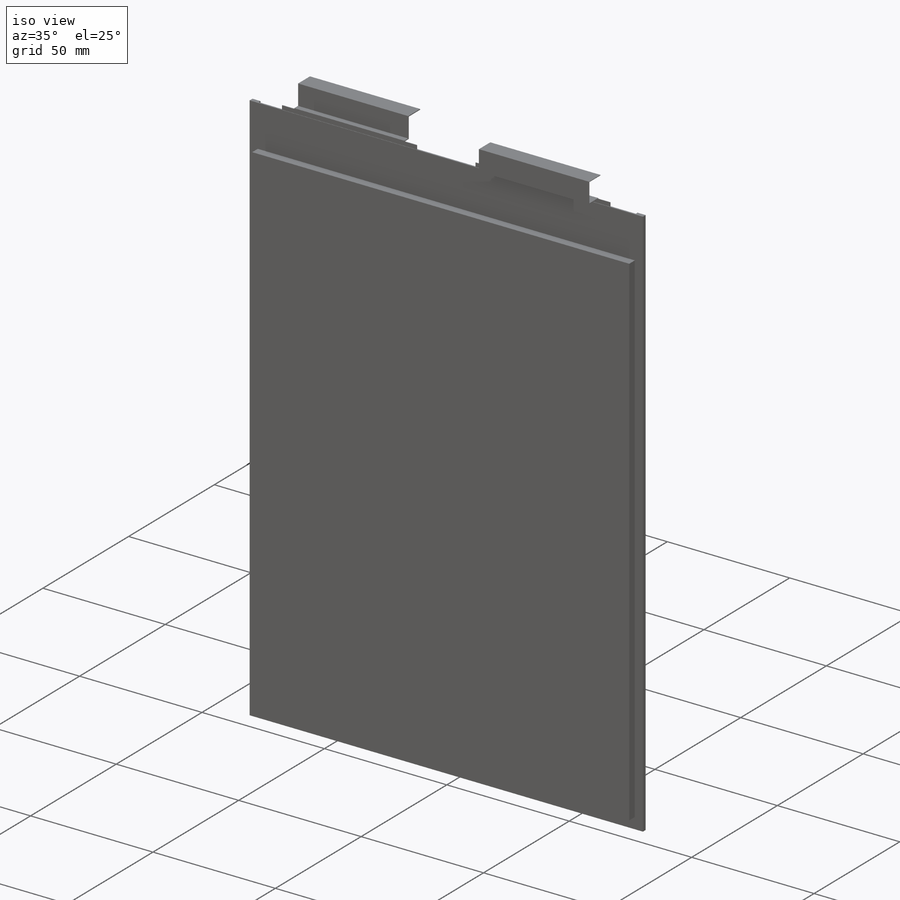
[diagram: iso view]
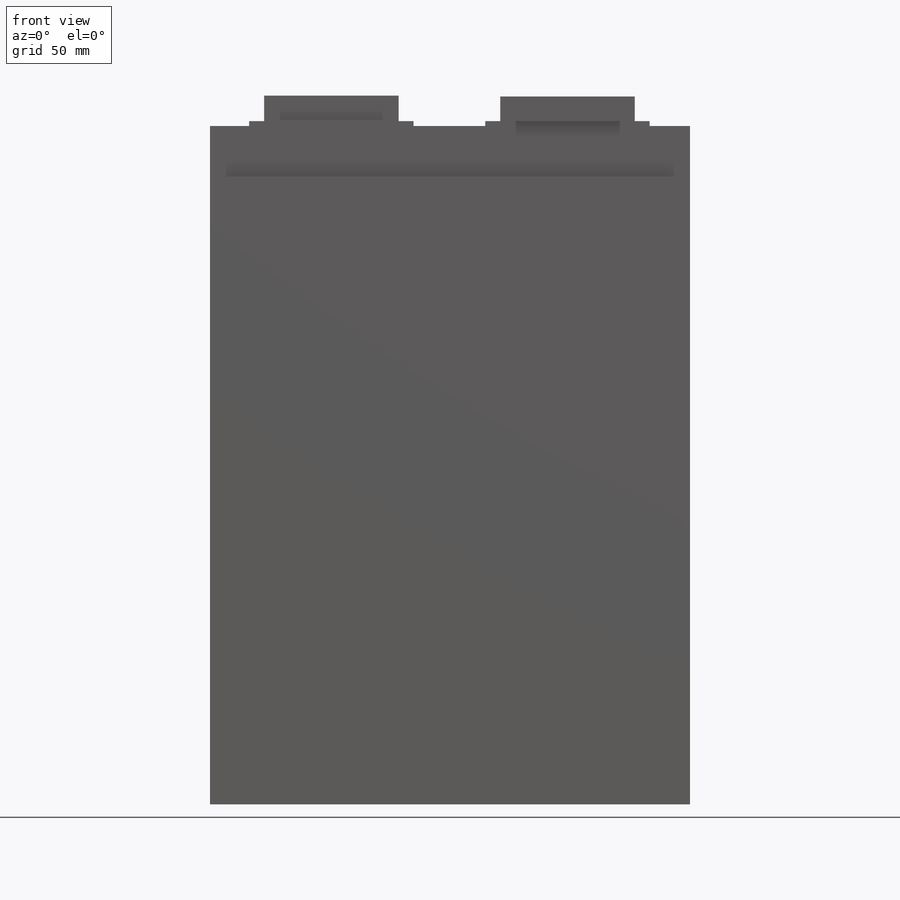
[diagram: front view]
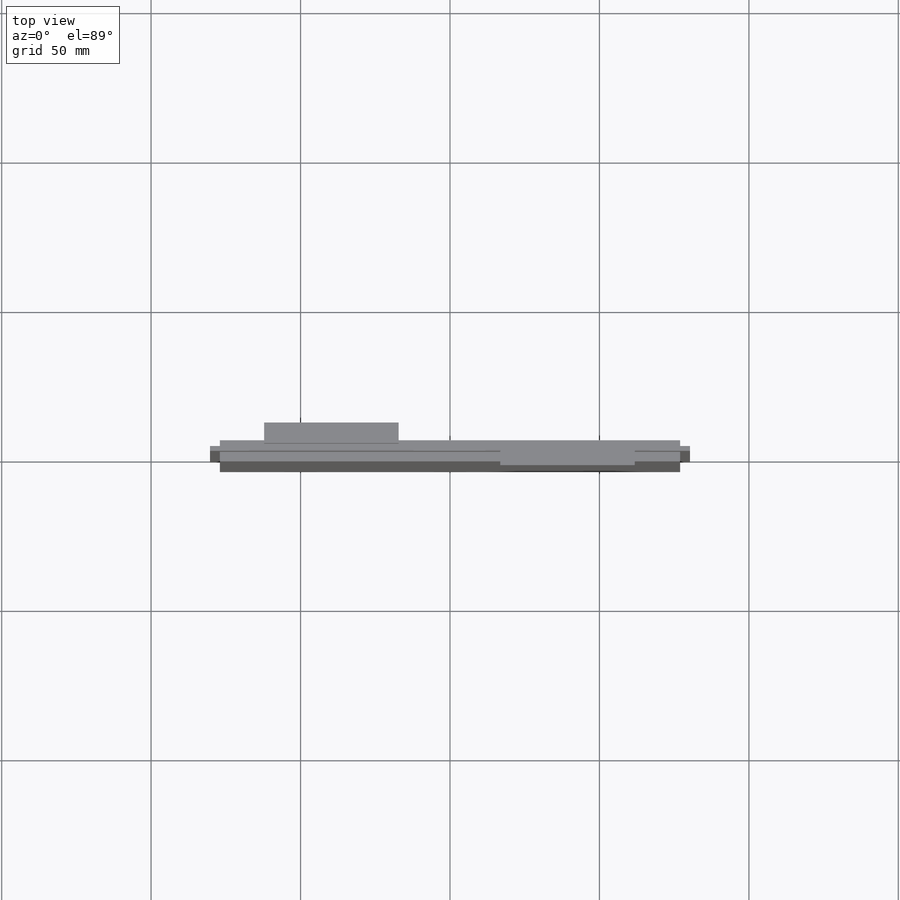
[diagram: top view]
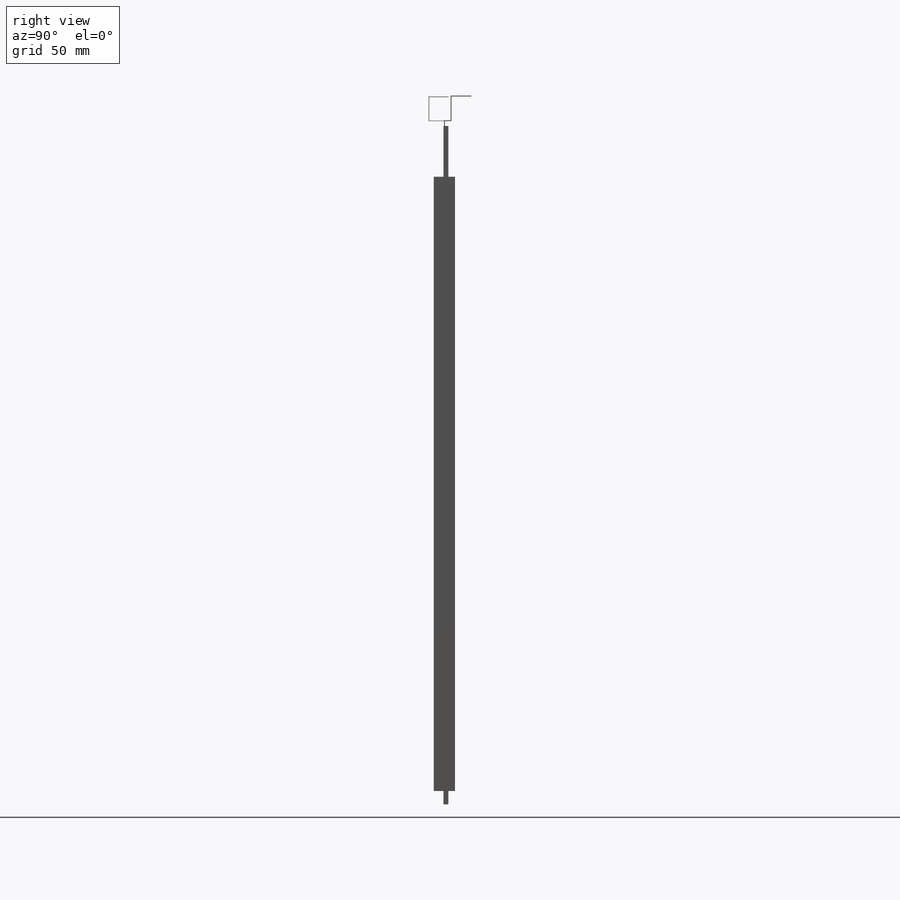
[diagram: right view]
SOLIDWORKS PART (.sldprt)
format: sldprt  version: not decoded by parser v0  size: 419,328 bytes
history: native  units: mm
features: sketch x11, extrude x5, plane x2, material x1 + 14 further entries (+14 scaffold rows collapsed; 1 parser-record rows omitted)
feature tree (48):
  scaffold x14  (default folders/planes/origin — collapsed)
  material  "A123 Amp20"
  "Cut-List-Item2"
  "Cut-List-Item3"
  "Cut-List-Item4"
  "Cut-List-Item5"
  "Cut-List-Item6"
  "Cut-List-Item7"
  "Cut-List-Item8"
  "Cut-List-Item9"
  "Cut-List-Item10"
  "Cut-List-Item11"
  "Cut-List-Item12"
  "Cut-List-Item13"
  "Cut-List-Item14"
  "Cut-List-Item15"
  sketch  "Sketch1"  dims[D1=160.6mm D2=227.0mm]
  extrude  "Insulation"  Depth=0.3mm
  sketch  "Sketch2"  dims[D1=154.0mm D2=4.5mm D3=17.0mm D4=3.3mm D5=3.3mm]
  extrude  "Main Body"  Depth=3.55mm
  sketch  "Sketch5"
  extrude  "Side Folds"  Depth=1.016mm
  parser-record x1  (decoder bookkeeping rows leaked as tree rows — omitted from the tree; the rows remain in map.json)
  sketch  "Sketch6"  dims[c1.D1=13.5mm c1.D2=1.6mm c1.D3=1.6mm c1.D4=1.6mm c1.D5=1.6mm c1.D6=~32.680092mm c1.D7=24.0mm c1.D8=55.0mm c1.D9=13.1mm c2.D2=~13.222472mm]
  extrude  "Negative Tab Base"  Depth=0.1mm
  sketch  "Sketch7"  dims[D1=24.0mm D2=~48.814089mm D3=13.1mm]
  extrude  "Positive Tab Base"  Depth=0.15mm
  sketch  "Tab Weldment Planes"
  sketch  "Negative Tab Sketch"  dims[c1.D1=0.2mm c1.D2=0.1mm c1.D3=3.924mm c1.D4=12.7mm c1.D5=0.1mm c1.D6=0.1mm c1.D7=2.94mm c1.D8=1.0mm c1.D9=6.258mm c2.D8=2.94mm c2.D10=0.1mm c2.D5=0.15mm c2.D2=0.1mm c2.D11=0.4mm c2.D12=2.54mm c2.D13=0.4mm c2.D14=0.1mm c3.D10=0.1mm c3.D5=0.15mm c3.D6=0.1mm c3.D14=0.4mm c3.D8=0.4mm c3.D7=2.54mm c3.D15=6.358mm c3.D16=8.06mm c3.D1=~4.984425mm c3.D2=~2.162842mm c3.D3=~4.800173mm c3.D4=~0.252293mm c4.D5=~3.954808mm c4.D1=0.4mm c4.D2=~5.16593mm]
  sketch  "Positive Tab Sketch"  dims[c1.D1=5.1mm c1.D2=19.8mm c2.D1=0.15mm c2.D2=0.7mm c2.D3=3.434mm c2.D4=12.7mm c2.D5=2.54mm c2.D6=0.15mm c2.D7=7.28mm c2.D8=5.08mm c2.D9=0.15mm c2.D10=0.15mm c2.D11=2.54mm c2.D12=0.15mm c2.D13=0.15mm c3.D1=12.7mm c3.D2=0.15mm c3.D3=3.434mm c3.D4=2.54mm c3.D5=2.54mm c3.D6=0.15mm c3.D7=0.7mm c3.D8=5.08mm c3.D9=7.28mm c3.D10=0.15mm c3.D11=0.15mm c3.D12=0.15mm c3.D13=0.15mm c3.D14=0.15mm c3.D15=0.15mm c4.D1=~1.132937mm c4.D2=~2.160831mm c5.D1=2.815mm c5.D3=~1.016777mm c5.D4=~2.343993mm c5.D5=~0.247505mm c5.D6=~0.650092mm c6.D1=~5.43524mm c6.D2=~2.89585mm c7.D1=0.15mm c7.D2=~2.23545mm]
  plane  "Plane6"
  sketch  "Sketch113"  dims[D1=45.0mm D2=0.2mm]
  sketch  "Positive Tab"
  plane  "Plane5"
  sketch  "Sketch110"  dims[D1=45.0mm D2=0.3mm]
decode coverage: 13 of 16 modeling features carry decoded parameters; 14 rows unclassified (native names shown)
note: ~ marks probable driven/reference dimensions
note: suppression state not decoded; provenance and decode notes live in map.json
